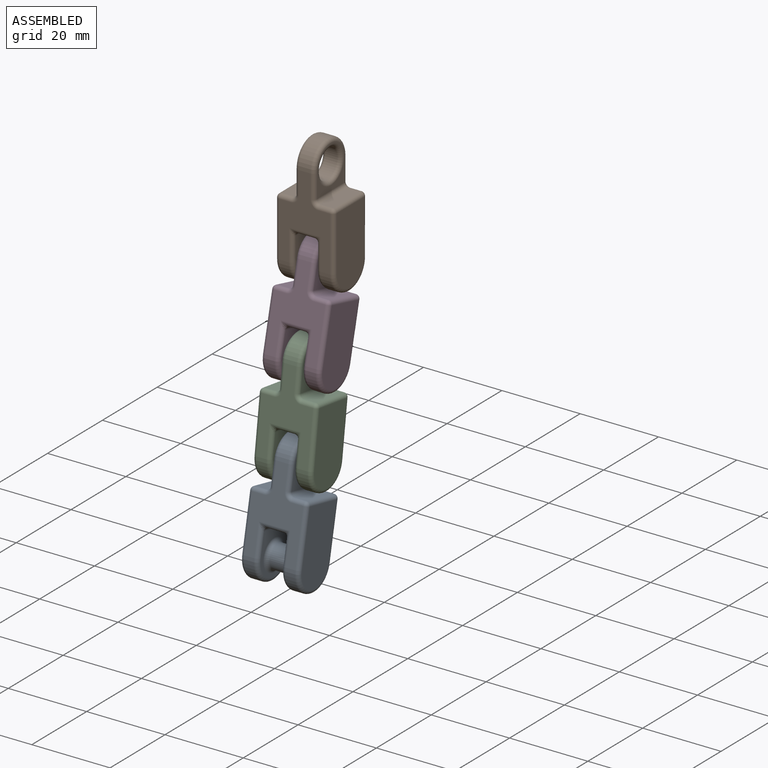
[diagram: assembled view]
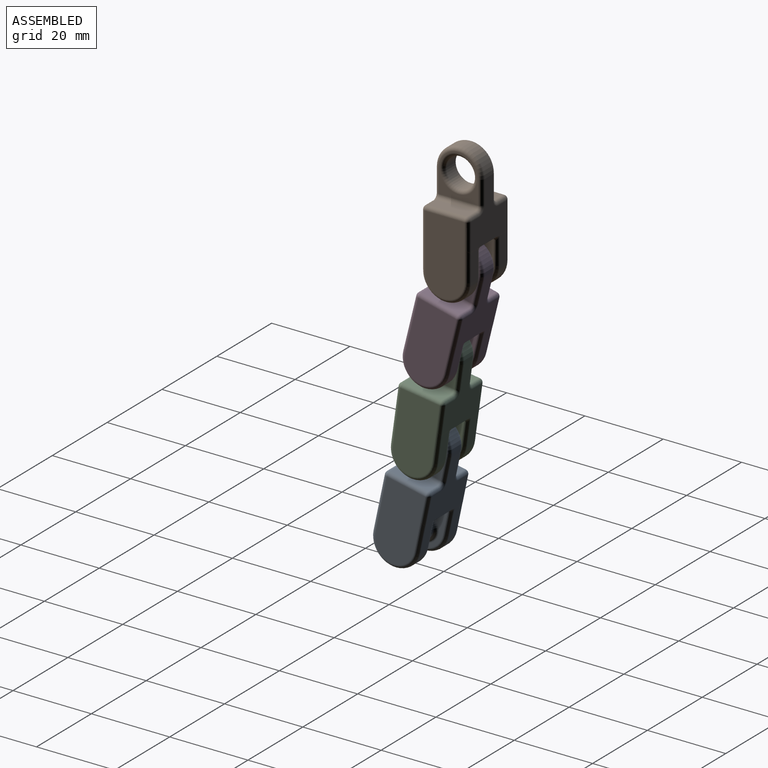
[diagram: assembled view, second angle]
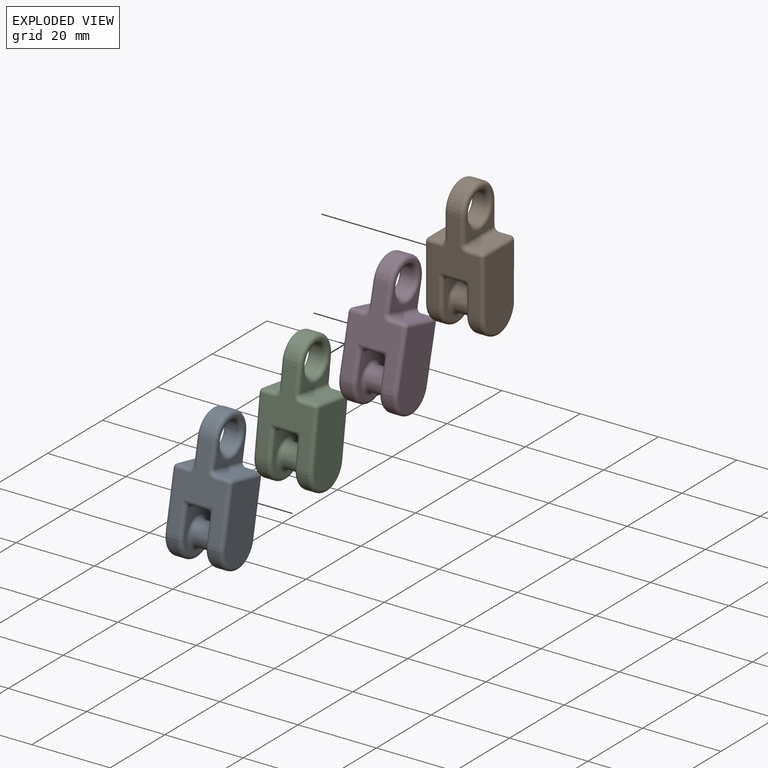
[diagram: exploded view]
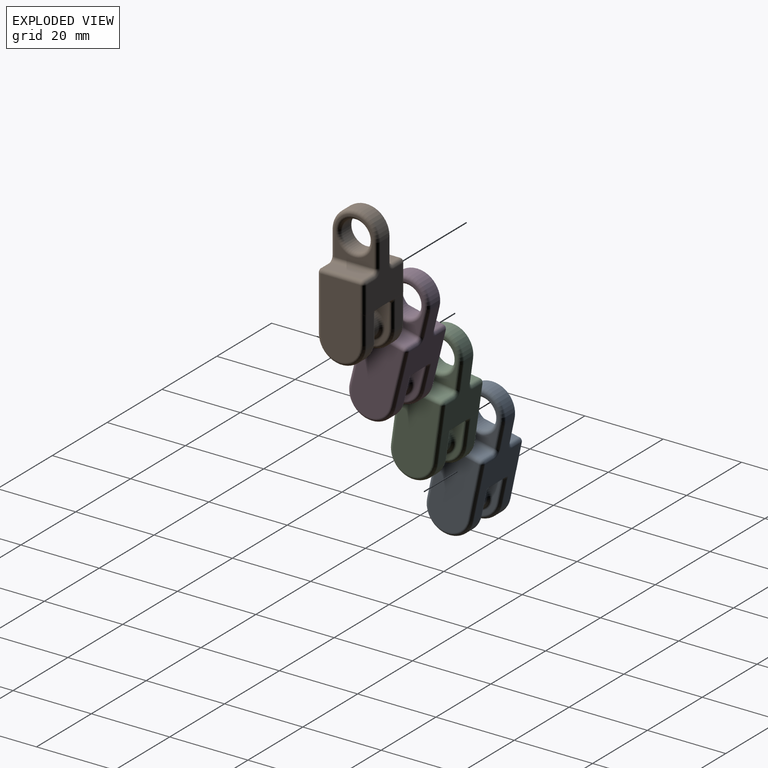
[diagram: exploded view, second angle]
ASSEMBLY  parts=4 mates=3
PART A: 75 faces, bbox 15x35x13 mm
  f0: plane 22x13mm, normal (0,0,1), area 143.7mm2, adj f2,f7,f11,f20,f21,f22,f27,f28
  f1: plane 6.82x2.5mm, normal (0,0,-1), area 17mm2, adj f2,f18,f43,f65
  f2: cylinder r=5.99mm len=11.98mm, axis (1,0,0), area 47.1mm2, adj f0,f1,f19,f41
  f3: plane 11x10mm, normal (-1,0,0), area 28.4mm2, adj f44,f48,f52,f53,f59
  f4: plane 11x10mm, normal (1,0,0), area 28.4mm2, adj f29,f33,f36,f37,f60
  f5: plane 11x4.56mm, normal (0,-1,0), area 44.2mm2, adj f6,f21,f62,f63,f69,f70
  f6: plane 15x13mm, normal (0,0,-1), area 116.7mm2, adj f5,f7,f34,f37,f39,f40,f51,f52
  f7: cylinder r=6mm len=12mm, axis (-1,0,0), area 56.5mm2, adj f0,f6,f33,f48
  f8: cylinder r=3.75mm len=7.5mm, axis (-1,0,0), area 70.7mm2, adj f59,f60
  f9: plane 6.82x2.5mm, normal (0,0,-1), area 17mm2, adj f11,f24,f26,f72
  f10: plane 10x3mm, normal (0,1,0), area 30mm2, adj f28,f35,f36,f40
  f11: cylinder r=5.99mm len=11.98mm, axis (-1,0,0), area 47.1mm2, adj f0,f9,f23,f25
  f12: plane 18.99x10mm, normal (1,0,0), area 179mm2, adj f25,f26,f27,f30,f34,f35
  f13: plane 10x3mm, normal (0,1,0), area 30mm2, adj f45,f50,f53,f56
  f14: plane 18.99x10mm, normal (-1,0,0), area 179mm2, adj f41,f42,f43,f47,f50,f51
  f15: plane 10.99x9.98mm, normal (1,0,0), area 48.8mm2, adj f18,f19,f20,f58,f62
  f16: plane 10.99x9.98mm, normal (-1,0,0), area 48.8mm2, adj f22,f23,f24,f57,f69
  f17: cylinder r=3mm len=6mm, axis (1,0,0), area 75.4mm2, adj f57,f58
  f18: cylinder r=1mm len=6.82mm, axis (0,1,0), area 9.8mm2, adj f1,f15,f19,f63,f64
  f19: torus R=4.99mm, axis (-1,0,0), area 27.8mm2, adj f2,f15,f18,f20
  f20: cylinder r=1mm len=8mm, axis (0,-1,0), area 10.6mm2, adj f0,f15,f19,f61
  f21: cylinder r=1mm len=8mm, axis (-1,0,0), area 8.6mm2, adj f0,f5,f61,f68
  f22: cylinder r=1mm len=8mm, axis (0,-1,0), area 10.6mm2, adj f0,f16,f23,f68
  f23: torus R=4.99mm, axis (1,0,0), area 27.8mm2, adj f11,f16,f22,f24
  f24: cylinder r=1mm len=6.82mm, axis (0,1,0), area 9.8mm2, adj f9,f16,f23,f70,f71
  f25: torus R=4.99mm, axis (1,0,0), area 27.8mm2, adj f11,f12,f26,f27
  f26: cylinder r=1mm len=8mm, axis (0,-1,0), area 11.3mm2, adj f9,f12,f25,f73,f74
  f27: cylinder r=1mm len=14mm, axis (0,1,0), area 22mm2, adj f0,f12,f25,f31
  f28: cylinder r=1mm len=3mm, axis (-1,0,0), area 4.7mm2, adj f0,f10,f31,f32
  f29: cylinder r=1mm len=6mm, axis (0,1,0), area 9.4mm2, adj f0,f4,f32,f33
  f30: cylinder r=1mm len=0.03mm, axis (0,0,1), area 0mm2, adj f12,f34,f74
  f31: sphere r=1mm, area 1.6mm2, adj f27,f28,f35
  f32: torus R=2mm, axis (0,0,1), area 3.4mm2, adj f0,f28,f29,f36
  f33: torus R=5mm, axis (1,0,0), area 27.8mm2, adj f4,f7,f29,f37
  f34: cylinder r=1mm len=7mm, axis (0,-1,0), area 10.4mm2, adj f6,f12,f30,f38,f73
  f35: cylinder r=1mm len=10mm, axis (0,0,-1), area 15.7mm2, adj f10,f12,f31,f38
  f36: cylinder r=1mm len=10mm, axis (0,0,1), area 15.7mm2, adj f4,f10,f32,f39
  f37: cylinder r=1mm len=6mm, axis (0,-1,0), area 9.4mm2, adj f4,f6,f33,f39
  f38: sphere r=1mm, area 1.6mm2, adj f34,f35,f40
  f39: torus R=2mm, axis (0,0,1), area 3.4mm2, adj f6,f36,f37,f40
  f40: cylinder r=1mm len=3mm, axis (1,0,0), area 4.7mm2, adj f6,f10,f38,f39
  f41: torus R=4.99mm, axis (-1,0,0), area 27.8mm2, adj f2,f14,f42,f43
  f42: cylinder r=1mm len=14mm, axis (0,1,0), area 22mm2, adj f0,f14,f41,f46
  f43: cylinder r=1mm len=8mm, axis (0,-1,0), area 11.3mm2, adj f1,f14,f41,f66,f67
  f44: cylinder r=1mm len=6mm, axis (0,-1,0), area 9.4mm2, adj f0,f3,f48,f49
  f45: cylinder r=1mm len=3mm, axis (1,0,0), area 4.7mm2, adj f0,f13,f46,f49
  f46: sphere r=1mm, area 1.6mm2, adj f42,f45,f50
  f47: cylinder r=1mm len=0.03mm, axis (0,0,1), area 0mm2, adj f14,f51,f66
  f48: torus R=5mm, axis (1,0,0), area 27.8mm2, adj f3,f7,f44,f52
  f49: torus R=2mm, axis (0,0,1), area 3.4mm2, adj f0,f44,f45,f53
  f50: cylinder r=1mm len=10mm, axis (0,0,-1), area 15.7mm2, adj f13,f14,f46,f54
  f51: cylinder r=1mm len=7mm, axis (0,-1,0), area 10.4mm2, adj f6,f14,f47,f54,f67
  f52: cylinder r=1mm len=6mm, axis (0,1,0), area 9.4mm2, adj f3,f6,f48,f55
  f53: cylinder r=1mm len=10mm, axis (0,0,-1), area 15.7mm2, adj f3,f13,f49,f55
  f54: sphere r=1mm, area 1.6mm2, adj f50,f51,f56
  f55: torus R=2mm, axis (0,0,1), area 3.4mm2, adj f6,f52,f53,f56
  f56: cylinder r=1mm len=3mm, axis (-1,0,0), area 4.7mm2, adj f6,f13,f54,f55
  f57: torus R=4mm, axis (1,0,0), area 33.2mm2, adj f16,f17
  f58: torus R=4mm, axis (-1,0,0), area 33.2mm2, adj f15,f17
  f59: torus R=4.75mm, axis (1,0,0), area 40.6mm2, adj f3,f8
  f60: torus R=4.75mm, axis (1,0,0), area 40.6mm2, adj f4,f8
  f61: bspline ~2x2mm, area 1.9mm2, adj f20,f21,f62
  f62: cylinder r=1mm len=9.98mm, axis (0,0,1), area 15.7mm2, adj f5,f15,f61,f63
  f63: torus R=2mm, axis (0,-1,0), area 1.1mm2, adj f5,f18,f62,f64
  f64: bspline ~1.81x1.05mm, area 0.9mm2, adj f6,f18,f63,f65
  f65: cylinder r=1mm len=2.5mm, axis (-1,0,0), area 0.5mm2, adj f1,f6,f64,f67
  f66: bspline ~0.26x0.26mm, area 0mm2, adj f43,f47,f67
  f67: bspline ~1.18x1.17mm, area 0.2mm2, adj f43,f51,f65,f66
  f68: bspline ~2x2mm, area 1.9mm2, adj f21,f22,f69
  f69: cylinder r=1mm len=9.98mm, axis (0,0,1), area 15.7mm2, adj f5,f16,f68,f70
  f70: torus R=2mm, axis (0,-1,0), area 1.1mm2, adj f5,f24,f69,f71
  f71: bspline ~1.81x1.05mm, area 0.9mm2, adj f6,f24,f70,f72
  f72: cylinder r=1mm len=2.5mm, axis (-1,0,0), area 0.5mm2, adj f6,f9,f71,f73
  f73: bspline ~1.17x1mm, area 0.2mm2, adj f26,f34,f72,f74
  f74: bspline ~0.26x0.26mm, area 0mm2, adj f26,f30,f73
PART B: same geometry as A
PART C: same geometry as A
PART D: same geometry as A
PLACE A rot(axis=(1,0,0),78.1deg) t=(0,-24.29,-24.1)mm
PLACE B rot(axis=(1,0,0),90deg) t=(0,-14.49,40.9)mm fixed
PLACE C rot(axis=(1,0,0),82.1deg) t=(0,-20.75,-2.4)mm
PLACE D rot(axis=(1,0,0),76.3deg) t=(0,-16.28,19.11)mm
MATE revolute A.f8 <-> C.f2  axis (-1,0,0) through (0,-22.75,-16.76)mm
MATE revolute C.f8 <-> D.f2  axis (-1,0,0) through (0,-19.73,5.03)mm
MATE revolute D.f8 <-> B.f2  axis (-1,0,0) through (0,-14.5,26.4)mm
